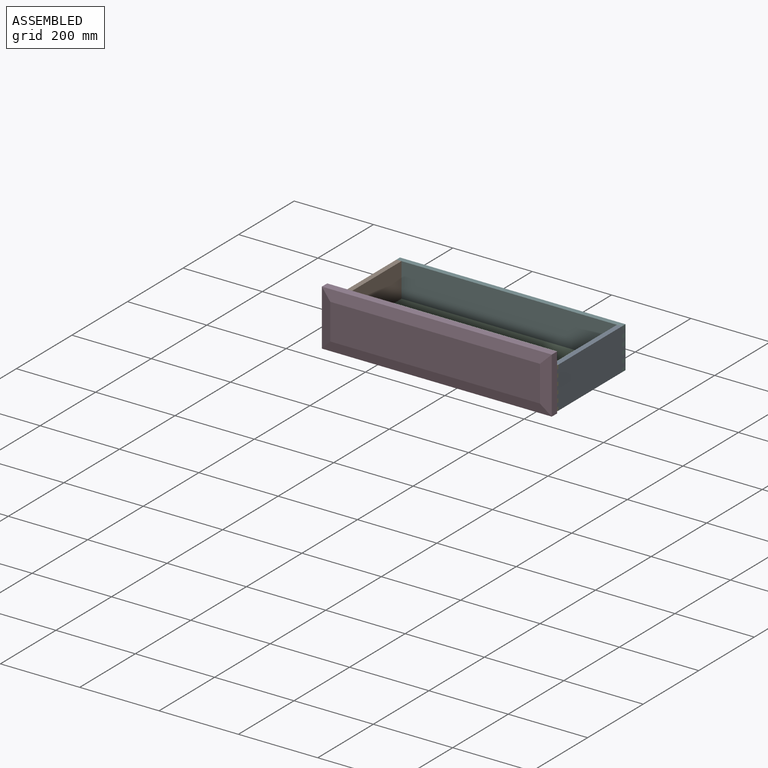
[diagram: assembled view]
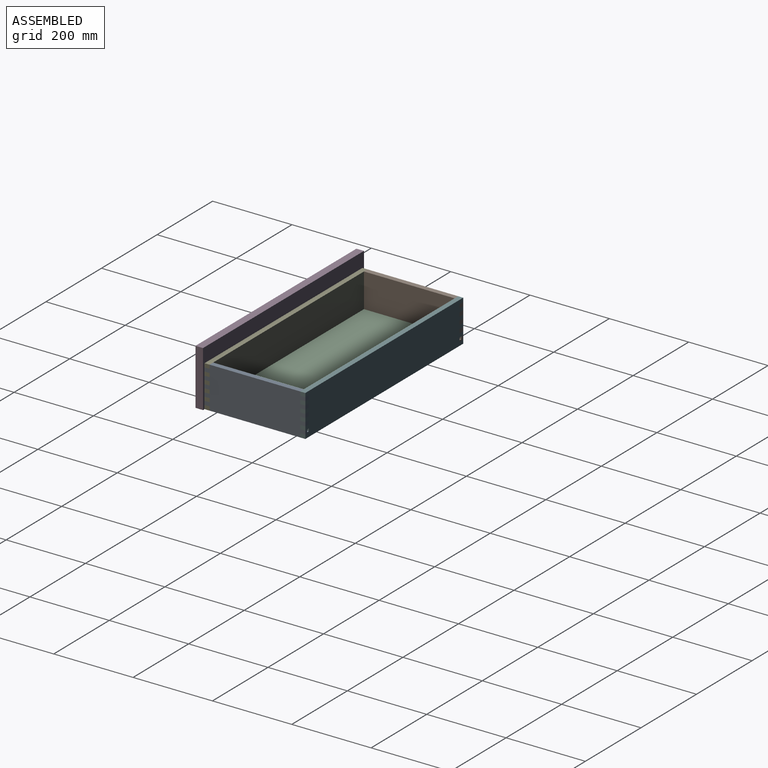
[diagram: assembled view, second angle]
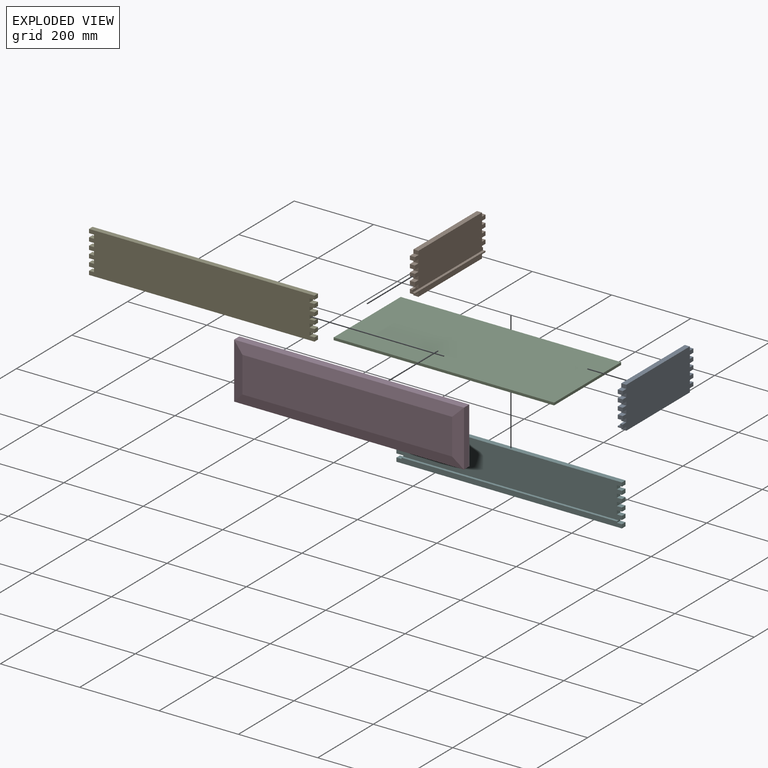
[diagram: exploded view]
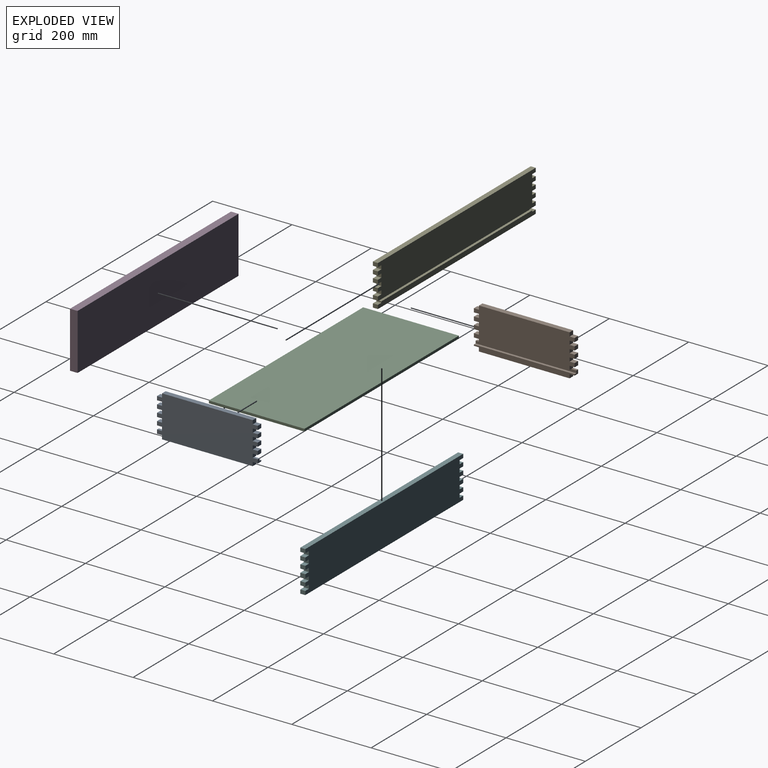
[diagram: exploded view, second angle]
ASSEMBLY  parts=6 mates=5
PART A: 50 faces, bbox 104.8x254x12.7 mm
  f0: plane 254x85.73mm, normal (0,0,1), area 20564.5mm2, adj f5,f7,f8,f9,f10,f11,f12,f13
  f1: plane 12.7x9.53mm, normal (0,1,0), area 80.6mm2, adj f3,f4,f6,f20,f48,f49
  f2: plane 12.7x6.35mm, normal (1,0,0), area 80.6mm2, adj f6,f16,f21,f49
  f3: plane 12.7x6.35mm, normal (1,0,0), area 80.6mm2, adj f1,f6,f23,f49
  f4: plane 254x12.7mm, normal (0,0,1), area 2983.9mm2, adj f1,f15,f16,f17,f18,f19,f20,f48
  f5: plane 228.6x12.7mm, normal (1,0,0), area 2903.2mm2, adj f0,f6,f43,f46
  f6: plane 254x104.78mm, normal (0,0,-1), area 25161.2mm2, adj f1,f2,f3,f5,f7,f8,f9,f10
  f7: plane 12.7x9.53mm, normal (0,-1,0), area 121mm2, adj f0,f6,f39,f44
  f8: plane 12.7x9.53mm, normal (0,1,0), area 121mm2, adj f0,f6,f42,f45
  f9: plane 12.7x9.53mm, normal (0,-1,0), area 121mm2, adj f0,f6,f33,f38
  f10: plane 12.7x9.53mm, normal (0,1,0), area 121mm2, adj f0,f6,f36,f40
  f11: plane 12.7x9.53mm, normal (0,-1,0), area 121mm2, adj f0,f6,f27,f32
  f12: plane 12.7x9.53mm, normal (0,1,0), area 121mm2, adj f0,f6,f30,f34
  f13: plane 12.7x9.53mm, normal (0,-1,0), area 121mm2, adj f0,f6,f22,f26
  f14: plane 12.7x9.53mm, normal (0,1,0), area 121mm2, adj f0,f6,f24,f28
  f15: plane 228.6x12.7mm, normal (-1,0,0), area 2903.2mm2, adj f4,f6,f17,f19
  f16: plane 12.7x9.53mm, normal (0,-1,0), area 80.6mm2, adj f2,f4,f6,f18,f48,f49
  f17: plane 12.7x9.53mm, normal (0,-1,0), area 121mm2, adj f4,f6,f15,f18
  f18: plane 12.7x12.7mm, normal (-1,0,0), area 161.3mm2, adj f4,f6,f16,f17
  f19: plane 12.7x9.53mm, normal (0,1,0), area 121mm2, adj f4,f6,f15,f20
  f20: plane 12.7x12.7mm, normal (-1,0,0), area 161.3mm2, adj f1,f4,f6,f19
  f21: plane 12.7x9.53mm, normal (0,-1,0), area 121mm2, adj f0,f2,f6,f22,f47
  f22: plane 12.7x12.7mm, normal (-1,0,0), area 161.3mm2, adj f0,f6,f13,f21
  f23: plane 12.7x9.53mm, normal (0,1,0), area 121mm2, adj f0,f3,f6,f24,f47
  f24: plane 12.7x12.7mm, normal (-1,0,0), area 161.3mm2, adj f0,f6,f14,f23
  f25: plane 12.7x9.53mm, normal (0,-1,0), area 121mm2, adj f0,f6,f26,f27
  f26: plane 12.7x12.7mm, normal (1,0,0), area 161.3mm2, adj f0,f6,f13,f25
  f27: plane 12.7x12.7mm, normal (-1,0,0), area 161.3mm2, adj f0,f6,f11,f25
  f28: plane 12.7x12.7mm, normal (1,0,0), area 161.3mm2, adj f0,f6,f14,f29
  f29: plane 12.7x9.53mm, normal (0,1,0), area 121mm2, adj f0,f6,f28,f30
  f30: plane 12.7x12.7mm, normal (-1,0,0), area 161.3mm2, adj f0,f6,f12,f29
  f31: plane 12.7x9.53mm, normal (0,-1,0), area 121mm2, adj f0,f6,f32,f33
  f32: plane 12.7x12.7mm, normal (1,0,0), area 161.3mm2, adj f0,f6,f11,f31
  f33: plane 12.7x12.7mm, normal (-1,0,0), area 161.3mm2, adj f0,f6,f9,f31
  f34: plane 12.7x12.7mm, normal (1,0,0), area 161.3mm2, adj f0,f6,f12,f35
  f35: plane 12.7x9.53mm, normal (0,1,0), area 121mm2, adj f0,f6,f34,f36
  f36: plane 12.7x12.7mm, normal (-1,0,0), area 161.3mm2, adj f0,f6,f10,f35
  f37: plane 12.7x9.53mm, normal (0,-1,0), area 121mm2, adj f0,f6,f38,f39
  f38: plane 12.7x12.7mm, normal (1,0,0), area 161.3mm2, adj f0,f6,f9,f37
  f39: plane 12.7x12.7mm, normal (-1,0,0), area 161.3mm2, adj f0,f6,f7,f37
  f40: plane 12.7x12.7mm, normal (1,0,0), area 161.3mm2, adj f0,f6,f10,f41
  f41: plane 12.7x9.53mm, normal (0,1,0), area 121mm2, adj f0,f6,f40,f42
  f42: plane 12.7x12.7mm, normal (-1,0,0), area 161.3mm2, adj f0,f6,f8,f41
  f43: plane 12.7x9.53mm, normal (0,-1,0), area 121mm2, adj f0,f5,f6,f44
  f44: plane 12.7x12.7mm, normal (1,0,0), area 161.3mm2, adj f0,f6,f7,f43
  f45: plane 12.7x12.7mm, normal (1,0,0), area 161.3mm2, adj f0,f6,f8,f46
  f46: plane 12.7x9.53mm, normal (0,1,0), area 121mm2, adj f0,f5,f6,f45
  f47: plane 228.6x6.35mm, normal (-1,0,0), area 1451.6mm2, adj f0,f21,f23,f49
  f48: plane 254x6.35mm, normal (1,0,0), area 1612.9mm2, adj f1,f4,f16,f49
  f49: plane 254x6.35mm, normal (0,0,1), area 1612.9mm2, adj f1,f2,f3,f16,f47,f48
PART B: same geometry as A
PART C: 6 faces, bbox 555.6x241.3x6.4 mm
  f0: plane 241.3x6.35mm, normal (-1,0,0), area 1532.3mm2, adj f1,f3,f4,f5
  f1: plane 555.63x6.35mm, normal (0,-1,0), area 3528.2mm2, adj f0,f2,f4,f5
  f2: plane 241.3x6.35mm, normal (1,0,0), area 1532.3mm2, adj f1,f3,f4,f5
  f3: plane 555.63x6.35mm, normal (0,1,0), area 3528.2mm2, adj f0,f2,f4,f5
  f4: plane 555.63x241.3mm, normal (0,0,1), area 134072.3mm2, adj f0,f1,f2,f3
  f5: plane 555.63x241.3mm, normal (0,0,-1), area 134072.3mm2, adj f0,f1,f2,f3
PART D: 10 faces, bbox 141.3x579.4x25.4 mm
  f0: plane 579.44x19.05mm, normal (-1,0,0), area 11038.3mm2, adj f1,f3,f4,f7
  f1: plane 141.29x19.05mm, normal (0,-1,0), area 2691.5mm2, adj f0,f2,f4,f9
  f2: plane 579.44x19.05mm, normal (1,0,0), area 11038.3mm2, adj f1,f3,f4,f8
  f3: plane 141.29x19.05mm, normal (0,1,0), area 2691.5mm2, adj f0,f2,f4,f6
  f4: plane 579.44x141.29mm, normal (0,0,1), area 81867.3mm2, adj f0,f1,f2,f3
  f5: plane 528.64x90.49mm, normal (0,0,-1), area 47835.1mm2, adj f6,f7,f8,f9
  f6: plane 141.29x25.4mm, normal (0,0.24,-0.97), area 3034.1mm2, adj f3,f5,f7,f8
  f7: plane 579.44x25.4mm, normal (-0.24,0,-0.97), area 14505.7mm2, adj f0,f5,f6,f9
  f8: plane 579.44x25.4mm, normal (0.24,0,-0.97), area 14505.7mm2, adj f2,f5,f6,f9
  f9: plane 141.29x25.4mm, normal (0,-0.24,-0.97), area 3034.1mm2, adj f1,f5,f7,f8
PART E: 48 faces, bbox 104.8x568.3x12.7 mm
  f0: plane 568.33x85.73mm, normal (0,0,1), area 47751.9mm2, adj f2,f3,f6,f7,f8,f9,f10,f11
  f1: plane 12.7x9.53mm, normal (0,-1,0), area 80.6mm2, adj f4,f5,f18,f21,f46,f47
  f2: plane 12.7x9.53mm, normal (0,-1,0), area 121mm2, adj f0,f5,f16,f41
  f3: plane 12.7x9.53mm, normal (0,1,0), area 121mm2, adj f0,f5,f16,f45
  f4: plane 568.33x12.7mm, normal (0,0,1), area 7137.1mm2, adj f1,f14,f15,f17,f18,f19,f20,f46
  f5: plane 568.33x104.78mm, normal (0,0,-1), area 58336.6mm2, adj f1,f2,f3,f6,f7,f8,f9,f10
  f6: plane 12.7x9.53mm, normal (0,-1,0), area 121mm2, adj f0,f5,f35,f40
  f7: plane 12.7x9.53mm, normal (0,1,0), area 121mm2, adj f0,f5,f39,f43
  f8: plane 12.7x9.53mm, normal (0,-1,0), area 121mm2, adj f0,f5,f29,f34
  f9: plane 12.7x9.53mm, normal (0,1,0), area 121mm2, adj f0,f5,f33,f37
  f10: plane 12.7x9.53mm, normal (0,-1,0), area 121mm2, adj f0,f5,f23,f28
  f11: plane 12.7x9.53mm, normal (0,1,0), area 121mm2, adj f0,f5,f27,f31
  f12: plane 12.7x9.53mm, normal (0,-1,0), area 121mm2, adj f0,f5,f21,f22
  f13: plane 12.7x9.53mm, normal (0,1,0), area 121mm2, adj f0,f5,f21,f25
  f14: plane 568.33x12.7mm, normal (-1,0,0), area 7217.7mm2, adj f4,f5,f15,f17
  f15: plane 12.7x9.53mm, normal (0,-1,0), area 121mm2, adj f4,f5,f14,f18
  f16: plane 568.33x12.7mm, normal (1,0,0), area 7217.7mm2, adj f0,f2,f3,f5
  f17: plane 12.7x9.53mm, normal (0,1,0), area 121mm2, adj f4,f5,f14,f19
  f18: plane 12.7x12.7mm, normal (1,0,0), area 161.3mm2, adj f1,f4,f5,f15
  f19: plane 12.7x12.7mm, normal (1,0,0), area 161.3mm2, adj f4,f5,f17,f20
  f20: plane 12.7x9.53mm, normal (0,1,0), area 80.6mm2, adj f4,f5,f19,f21,f46,f47
  f21: plane 568.33x12.7mm, normal (-1,0,0), area 3770.2mm2, adj f0,f1,f5,f12,f13,f20,f47
  f22: plane 12.7x12.7mm, normal (1,0,0), area 161.3mm2, adj f0,f5,f12,f24
  f23: plane 12.7x12.7mm, normal (-1,0,0), area 161.3mm2, adj f0,f5,f10,f24
  f24: plane 12.7x9.53mm, normal (0,-1,0), area 121mm2, adj f0,f5,f22,f23
  f25: plane 12.7x12.7mm, normal (1,0,0), area 161.3mm2, adj f0,f5,f13,f26
  f26: plane 12.7x9.53mm, normal (0,1,0), area 121mm2, adj f0,f5,f25,f27
  f27: plane 12.7x12.7mm, normal (-1,0,0), area 161.3mm2, adj f0,f5,f11,f26
  f28: plane 12.7x12.7mm, normal (1,0,0), area 161.3mm2, adj f0,f5,f10,f30
  f29: plane 12.7x12.7mm, normal (-1,0,0), area 161.3mm2, adj f0,f5,f8,f30
  f30: plane 12.7x9.53mm, normal (0,-1,0), area 121mm2, adj f0,f5,f28,f29
  f31: plane 12.7x12.7mm, normal (1,0,0), area 161.3mm2, adj f0,f5,f11,f32
  f32: plane 12.7x9.53mm, normal (0,1,0), area 121mm2, adj f0,f5,f31,f33
  f33: plane 12.7x12.7mm, normal (-1,0,0), area 161.3mm2, adj f0,f5,f9,f32
  f34: plane 12.7x12.7mm, normal (1,0,0), area 161.3mm2, adj f0,f5,f8,f36
  f35: plane 12.7x12.7mm, normal (-1,0,0), area 161.3mm2, adj f0,f5,f6,f36
  f36: plane 12.7x9.53mm, normal (0,-1,0), area 121mm2, adj f0,f5,f34,f35
  f37: plane 12.7x12.7mm, normal (1,0,0), area 161.3mm2, adj f0,f5,f9,f38
  f38: plane 12.7x9.53mm, normal (0,1,0), area 121mm2, adj f0,f5,f37,f39
  f39: plane 12.7x12.7mm, normal (-1,0,0), area 161.3mm2, adj f0,f5,f7,f38
  f40: plane 12.7x12.7mm, normal (1,0,0), area 161.3mm2, adj f0,f5,f6,f42
  f41: plane 12.7x12.7mm, normal (-1,0,0), area 161.3mm2, adj f0,f2,f5,f42
  f42: plane 12.7x9.53mm, normal (0,-1,0), area 121mm2, adj f0,f5,f40,f41
  f43: plane 12.7x12.7mm, normal (1,0,0), area 161.3mm2, adj f0,f5,f7,f44
  f44: plane 12.7x9.53mm, normal (0,1,0), area 121mm2, adj f0,f5,f43,f45
  f45: plane 12.7x12.7mm, normal (-1,0,0), area 161.3mm2, adj f0,f3,f5,f44
  f46: plane 542.93x6.35mm, normal (1,0,0), area 3447.6mm2, adj f1,f4,f20,f47
  f47: plane 542.93x6.35mm, normal (0,0,1), area 3447.6mm2, adj f1,f20,f21,f46
PART F: same geometry as E
PLACE A rot(axis=(0,-1,0),90deg) t=(284.16,19.05,-180.16)mm
PLACE B rot(axis=(-0.71,0,-0.71),180deg) t=(-284.16,273.05,-180.16)mm
PLACE C rot(axis=(0.61,-0.76,0.23),0deg) t=(-819.87,25.4,26.99)mm
PLACE D rot(axis=(-0.58,-0.58,-0.58),120deg) t=(-289.72,-6.35,-363.37)mm
PLACE E rot(axis=(-0.58,-0.58,-0.58),120deg) t=(-284.16,19.05,14.29)mm
PLACE F rot(axis=(0.58,-0.58,0.58),120deg) t=(284.16,273.05,14.29)mm
MATE fastened E.f21 <-> C.f4  axis (0,0,-1) through (0,25.4,33.34)mm
MATE fastened A.f40 <-> F.f35  axis (0,0,1) through (277.81,266.7,90.49)mm
MATE fastened B.f38 <-> F.f39  axis (0,0,1) through (-277.81,266.7,90.49)mm
MATE fastened B.f40 <-> E.f35  axis (0,0,1) through (-277.81,25.4,90.49)mm
MATE fastened D.f4 <-> E.f5  axis (0,1,0) through (0,19.05,14.29)mm
